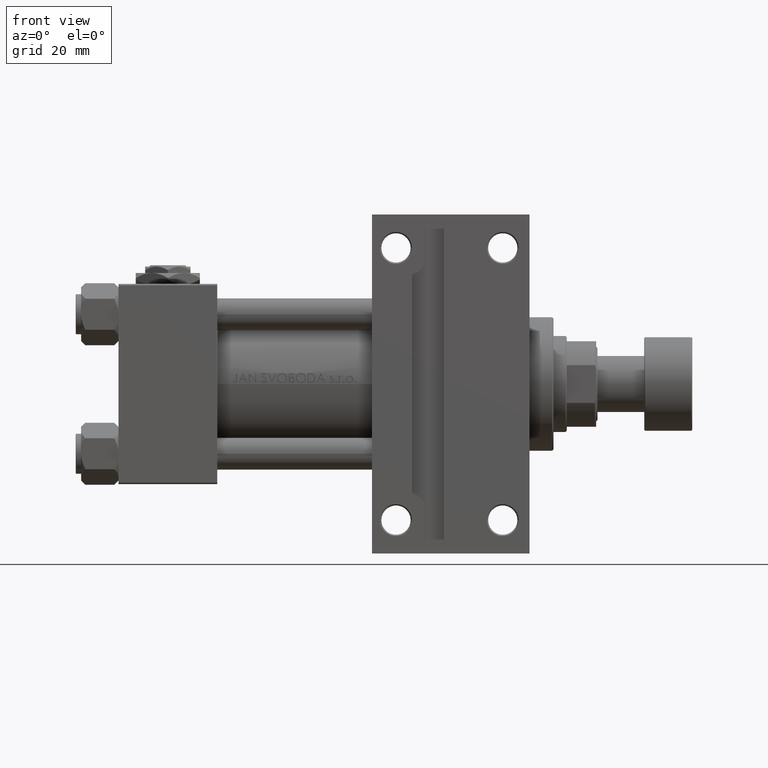
[diagram: clean part render]
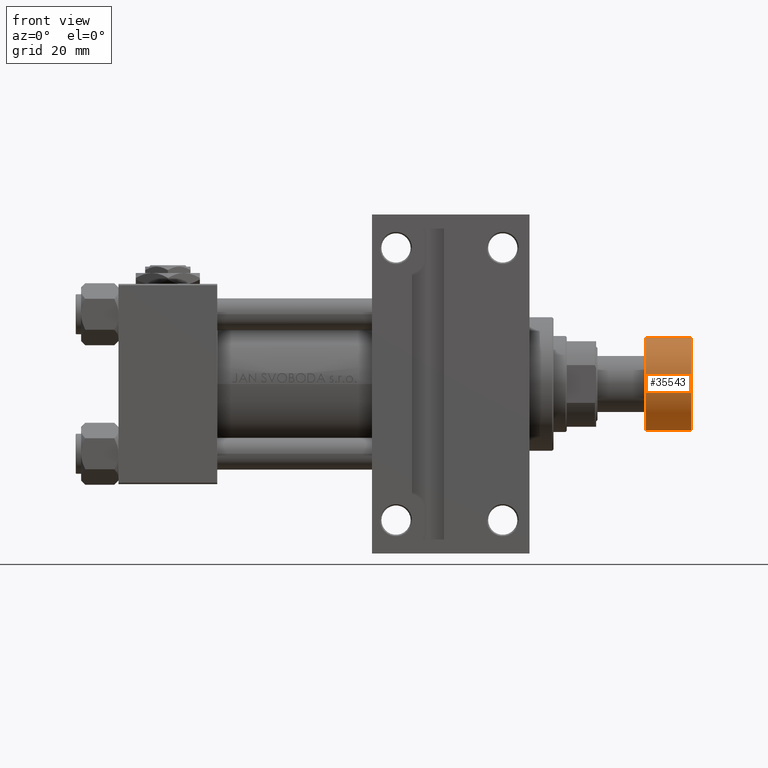
[diagram: same view with one face highlighted and labeled with its STEP entity id]
A machine part, front view. The second image highlights one B-rep face of the part: STEP entity #35543.
In plain terms, the highlighted cylindrical surface (partial cylindrical patch) has radius 17.5 mm, axis along (1, 0, 0).
Its self-contained STEP definition (entity closure, byte-faithful):
#351 = AXIS2_PLACEMENT_3D ( 'NONE', #38765, #38516, #11600 ) ;
#755 = DIRECTION ( 'NONE',  ( 0.000000000000000000, 0.000000000000000000, 1.000000000000000000 ) ) ;
#3070 = FACE_OUTER_BOUND ( 'NONE', #13919, .T. ) ;
#3439 = CARTESIAN_POINT ( 'NONE',  ( -17.50000000000000355, 2.143131898507868643E-15, -0.5000000000000004441 ) ) ;
#3572 = VERTEX_POINT ( 'NONE', #3439 ) ;
#3803 = LINE ( 'NONE', #8370, #39944 ) ;
#7891 = CARTESIAN_POINT ( 'NONE',  ( 0.000000000000000000, 0.000000000000000000, -0.5000000000000004441 ) ) ;
#8016 = CARTESIAN_POINT ( 'NONE',  ( -17.50000000000000355, 2.143131898507868643E-15, -17.49999999999999645 ) ) ;
#8370 = CARTESIAN_POINT ( 'NONE',  ( -17.50000000000000355, 2.143131898507868643E-15, -18.00000000000000000 ) ) ;
#11600 = DIRECTION ( 'NONE',  ( 1.000000000000000000, 0.000000000000000000, 0.000000000000000000 ) ) ;
#11787 = VECTOR ( 'NONE', #44747, 1000.000000000000000 ) ;
#12193 = DIRECTION ( 'NONE',  ( 1.000000000000000000, 0.000000000000000000, 0.000000000000000000 ) ) ;
#13194 = EDGE_CURVE ( 'NONE', #28386, #29663, #48299, .T. ) ;
#13919 = EDGE_LOOP ( 'NONE', ( #48440, #33812, #25734, #38932 ) ) ;
#18560 = CYLINDRICAL_SURFACE ( 'NONE', #49109, 17.50000000000000355 ) ;
#20660 = EDGE_CURVE ( 'NONE', #46784, #3572, #3803, .T. ) ;
#22897 = CARTESIAN_POINT ( 'NONE',  ( 0.000000000000000000, 0.000000000000000000, -18.00000000000000000 ) ) ;
#23069 = CIRCLE ( 'NONE', #351, 17.50000000000000355 ) ;
#23929 = EDGE_CURVE ( 'NONE', #46784, #28386, #23069, .T. ) ;
#25734 = ORIENTED_EDGE ( 'NONE', *, *, #13194, .T. ) ;
#26315 = CARTESIAN_POINT ( 'NONE',  ( 17.50000000000000355, 0.000000000000000000, -0.5000000000000004441 ) ) ;
#26673 = DIRECTION ( 'NONE',  ( -0.000000000000000000, -0.000000000000000000, -1.000000000000000000 ) ) ;
#28386 = VERTEX_POINT ( 'NONE', #37535 ) ;
#29033 = CARTESIAN_POINT ( 'NONE',  ( 17.50000000000000355, 0.000000000000000000, -18.00000000000000000 ) ) ;
#29663 = VERTEX_POINT ( 'NONE', #26315 ) ;
#32863 = CIRCLE ( 'NONE', #47412, 17.50000000000000355 ) ;
#33705 = EDGE_CURVE ( 'NONE', #29663, #3572, #32863, .T. ) ;
#33812 = ORIENTED_EDGE ( 'NONE', *, *, #23929, .T. ) ;
#34052 = DIRECTION ( 'NONE',  ( 1.000000000000000000, 0.000000000000000000, 0.000000000000000000 ) ) ;
#35543 = ADVANCED_FACE ( 'NONE', ( #3070 ), #18560, .T. ) ;
#37535 = CARTESIAN_POINT ( 'NONE',  ( 17.50000000000000355, 0.000000000000000000, -17.49999999999999645 ) ) ;
#38361 = DIRECTION ( 'NONE',  ( 0.000000000000000000, 0.000000000000000000, 1.000000000000000000 ) ) ;
#38516 = DIRECTION ( 'NONE',  ( 0.000000000000000000, 0.000000000000000000, 1.000000000000000000 ) ) ;
#38765 = CARTESIAN_POINT ( 'NONE',  ( 0.000000000000000000, 0.000000000000000000, -17.49999999999999645 ) ) ;
#38932 = ORIENTED_EDGE ( 'NONE', *, *, #33705, .T. ) ;
#39944 = VECTOR ( 'NONE', #755, 1000.000000000000000 ) ;
#44747 = DIRECTION ( 'NONE',  ( 0.000000000000000000, 0.000000000000000000, 1.000000000000000000 ) ) ;
#46784 = VERTEX_POINT ( 'NONE', #8016 ) ;
#47412 = AXIS2_PLACEMENT_3D ( 'NONE', #7891, #26673, #12193 ) ;
#48299 = LINE ( 'NONE', #29033, #11787 ) ;
#48440 = ORIENTED_EDGE ( 'NONE', *, *, #20660, .F. ) ;
#49109 = AXIS2_PLACEMENT_3D ( 'NONE', #22897, #38361, #34052 ) ;